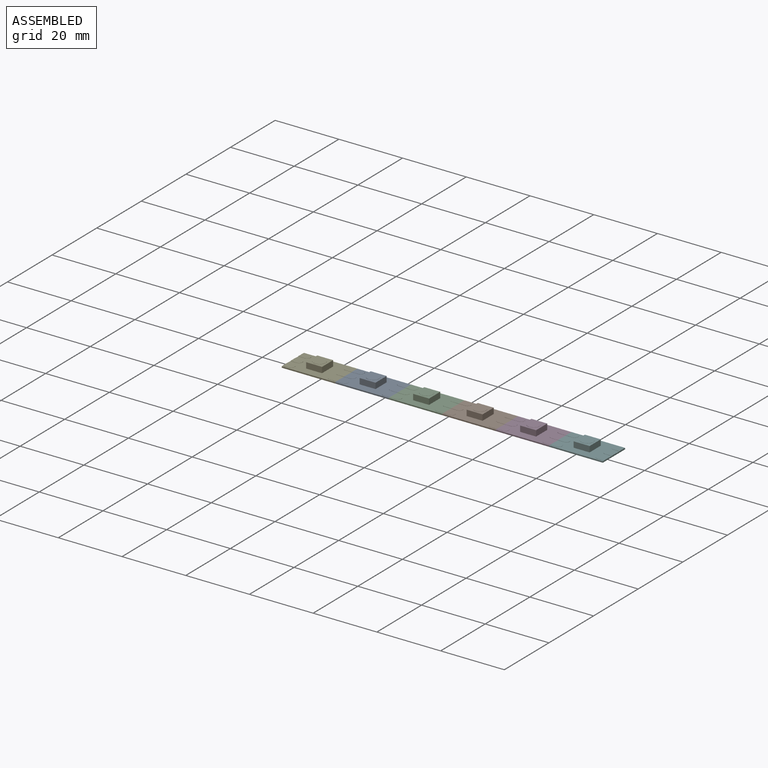
[diagram: assembled view]
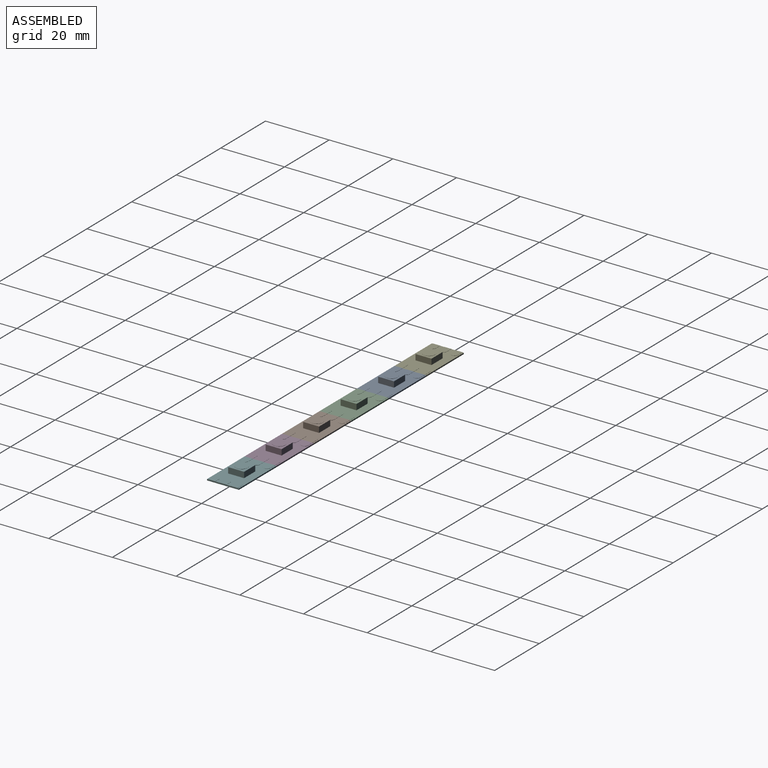
[diagram: assembled view, second angle]
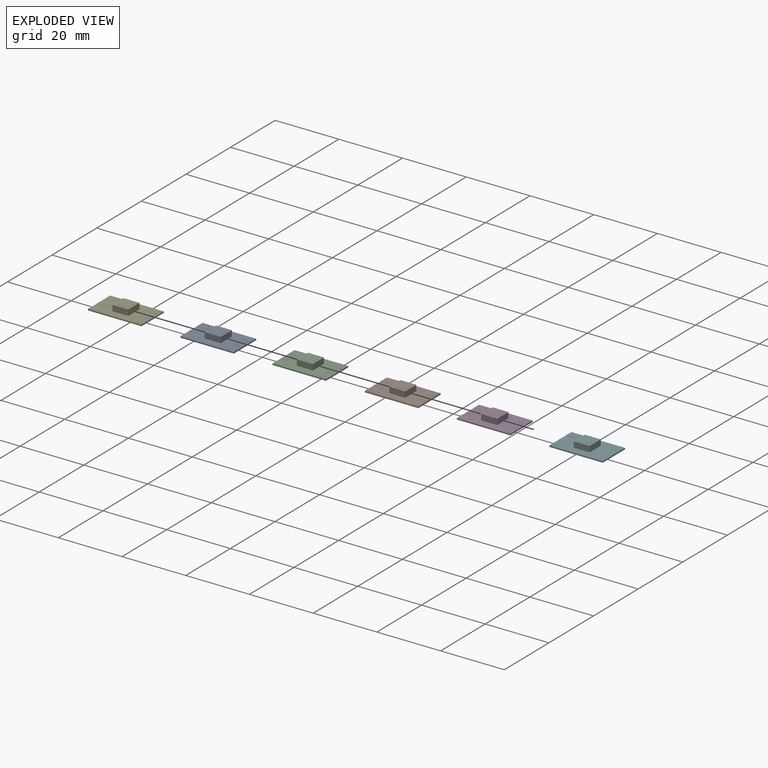
[diagram: exploded view]
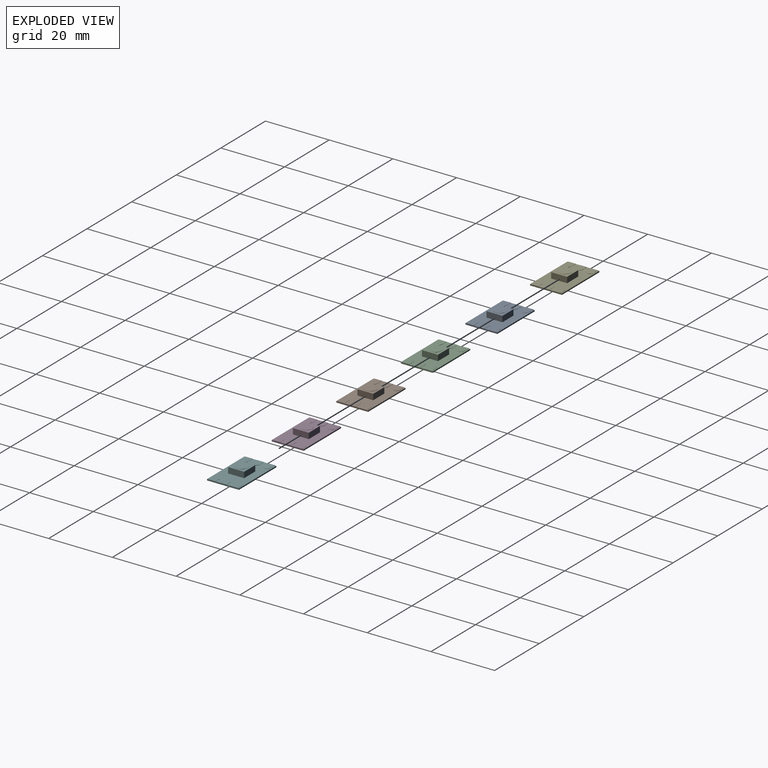
[diagram: exploded view, second angle]
ASSEMBLY  parts=6 mates=5
PART A: 37 faces, bbox 16.8x10x2.3 mm
  f0: plane 16.8x10mm, normal (0,0,1), area 105.9mm2, adj f1,f2,f3,f4,f6,f7,f8,f10
  f1: plane 10x0.45mm, normal (1,0,0), area 4.3mm2, adj f0,f2,f4,f5,f18,f20,f21,f22
  f2: plane 16.8x0.4mm, normal (0,1,0), area 6.7mm2, adj f0,f1,f3,f5
  f3: plane 10x0.45mm, normal (-1,0,0), area 4.3mm2, adj f0,f2,f4,f5,f6,f8,f9,f10
  f4: plane 16.8x0.4mm, normal (0,-1,0), area 6.7mm2, adj f0,f1,f3,f5
  f5: plane 16.8x10mm, normal (0,0,-1), area 168mm2, adj f1,f2,f3,f4
  f6: plane 1.9x0.05mm, normal (0,-1,0), area 0.1mm2, adj f0,f3,f7,f9
  f7: cylinder r=1.1mm len=2.2mm, axis (0,0,-1), area 0.2mm2, adj f0,f6,f8,f9
  f8: plane 1.9x0.05mm, normal (0,1,0), area 0.1mm2, adj f0,f3,f7,f9
  f9: plane 3x2.2mm, normal (0,0,1), area 6.1mm2, adj f3,f6,f7,f8
  f10: plane 1.9x0.05mm, normal (0,-1,0), area 0.1mm2, adj f0,f3,f11,f13
  f11: cylinder r=1.1mm len=2.2mm, axis (0,0,-1), area 0.2mm2, adj f0,f10,f12,f13
  f12: plane 1.9x0.05mm, normal (0,1,0), area 0.1mm2, adj f0,f3,f11,f13
  f13: plane 3x2.2mm, normal (0,0,1), area 6.1mm2, adj f3,f10,f11,f12
  f14: plane 2x0.05mm, normal (0,-1,0), area 0.1mm2, adj f0,f3,f15,f17
  f15: cylinder r=1.1mm len=2.2mm, axis (0,0,-1), area 0.2mm2, adj f0,f14,f16,f17
  f16: plane 2x0.05mm, normal (0,1,0), area 0.1mm2, adj f0,f3,f15,f17
  f17: plane 3.1x2.2mm, normal (0,0,1), area 6.3mm2, adj f3,f14,f15,f16
  f18: plane 2x0.05mm, normal (0,1,0), area 0.1mm2, adj f0,f1,f19,f21
  f19: cylinder r=1.1mm len=2.2mm, axis (0,0,-1), area 0.2mm2, adj f0,f18,f20,f21
  f20: plane 2x0.05mm, normal (0,-1,0), area 0.1mm2, adj f0,f1,f19,f21
  f21: plane 3.1x2.2mm, normal (0,0,1), area 6.3mm2, adj f1,f18,f19,f20
  f22: plane 1.9x0.05mm, normal (0,1,0), area 0.1mm2, adj f0,f1,f23,f25
  f23: cylinder r=1.1mm len=2.2mm, axis (0,0,-1), area 0.2mm2, adj f0,f22,f24,f25
  f24: plane 1.9x0.05mm, normal (0,-1,0), area 0.1mm2, adj f0,f1,f23,f25
  f25: plane 3x2.2mm, normal (0,0,1), area 6.1mm2, adj f1,f22,f23,f24
  f26: plane 2x0.05mm, normal (0,1,0), area 0.1mm2, adj f0,f1,f27,f29
  f27: cylinder r=1.1mm len=2.2mm, axis (0,0,-1), area 0.2mm2, adj f0,f26,f28,f29
  f28: plane 2x0.05mm, normal (0,-1,0), area 0.1mm2, adj f0,f1,f27,f29
  f29: plane 3.1x2.2mm, normal (0,0,1), area 6.3mm2, adj f1,f26,f27,f28
  f30: plane 5x1.8mm, normal (0,-1,0), area 9mm2, adj f0,f31,f33,f34
  f31: plane 5x1.8mm, normal (1,0,0), area 9mm2, adj f0,f30,f32,f34
  f32: plane 5x1.8mm, normal (0,1,0), area 9mm2, adj f0,f31,f33,f34
  f33: plane 5x1.8mm, normal (-1,0,0), area 9mm2, adj f0,f30,f32,f34
  f34: plane 5x5mm, normal (0,0,1), area 13.7mm2, adj f30,f31,f32,f33,f35
  f35: cylinder r=1.9mm len=3.8mm, axis (0,0,-1), area 0.6mm2, adj f34,f36
  f36: plane 3.8x3.8mm, normal (0,0,1), area 11.3mm2, adj f35
PART B: same geometry as A
PART C: same geometry as A
PART D: same geometry as A
PART E: same geometry as A
PART F: same geometry as A
PLACE A t=(-25.2,0,0.4)mm
PLACE B t=(8.4,0,0.4)mm
PLACE C t=(-8.4,0,0.4)mm
PLACE D t=(25.2,0,0.4)mm
PLACE E t=(-42,0,0.4)mm
PLACE F t=(42,0,0.4)mm
MATE fastened A.f1 <-> C.f3  axis (1,0,0) through (-16.8,0,0.2)mm
MATE fastened F.f3 <-> D.f1  axis (-1,0,0) through (33.6,0,0.2)mm
MATE fastened E.f1 <-> A.f3  axis (1,0,0) through (-33.6,0,0.2)mm
MATE fastened B.f3 <-> C.f1  axis (-1,0,0) through (0,0,0.2)mm
MATE fastened D.f3 <-> B.f1  axis (-1,0,0) through (16.8,0,0.2)mm
